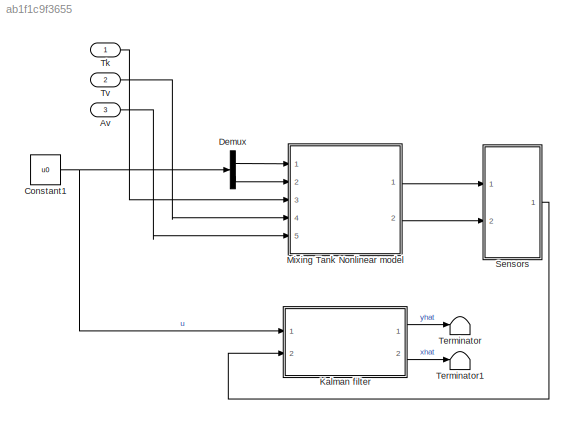
MODEL slx_ab1f1c9f3655
KIND model
CONFIG AbsTol = auto
CONFIG EnableMultiTasking = off
CONFIG FixedStep = STEP_SIZE
CONFIG MaxStep = auto
CONFIG MinStep = auto
CONFIG RelTol = 1e-3
CONFIG SampleTimeConstraint = Unconstrained
CONFIG Solver = ode4
CONFIG SolverName = ode4
CONFIG StartTime = 0.0
CONFIG StopTime = SIM_TIME
BLOCK [Inport] Av
  IconDisplay = Port number
  Port = 3
BLOCK [Constant] Constant1
  Value = u0
BLOCK [Demux] Demux
  DisplayOption = bar
  Outputs = 2
  Ports = [1, 2]
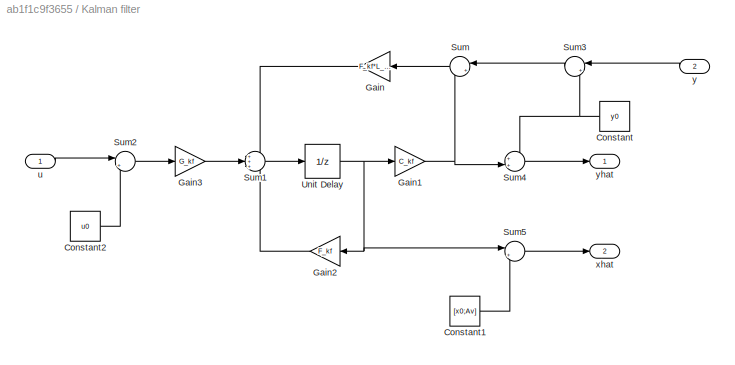
BLOCK [SubSystem] Kalman filter
  Ports = [2, 2]
  RequestExecContextInheritance = off
BLOCK [Constant] Kalman filter/Constant
  Value = y0
BLOCK [Constant] Kalman filter/Constant1
  Value = [x0;Av]
BLOCK [Constant] Kalman filter/Constant2
  Value = u0
BLOCK [Gain] Kalman filter/Gain
  Gain = F_kf*L_kf
  Multiplication = Matrix(K*u) (u vector)
  OutDataTypeStr = Inherit: Inherit via internal rule
  ParamDataTypeStr = Inherit: Inherit via internal rule
  SaturateOnIntegerOverflow = off
BLOCK [Gain] Kalman filter/Gain1
  Gain = C_kf
  Multiplication = Matrix(K*u) (u vector)
  OutDataTypeStr = Inherit: Inherit via internal rule
  ParamDataTypeStr = Inherit: Inherit via internal rule
  SaturateOnIntegerOverflow = off
BLOCK [Gain] Kalman filter/Gain2
  Gain = F_kf
  Multiplication = Matrix(K*u) (u vector)
  OutDataTypeStr = Inherit: Inherit via internal rule
  ParamDataTypeStr = Inherit: Inherit via internal rule
  SaturateOnIntegerOverflow = off
BLOCK [Gain] Kalman filter/Gain3
  Gain = G_kf
  Multiplication = Matrix(K*u) (u vector)
  OutDataTypeStr = Inherit: Inherit via internal rule
  ParamDataTypeStr = Inherit: Inherit via internal rule
  SaturateOnIntegerOverflow = off
BLOCK [Sum] Kalman filter/Sum
  IconShape = round
  InputSameDT = off
  Inputs = |+-
  OutDataTypeStr = Inherit: Inherit via internal rule
  Ports = [2, 1]
  SaturateOnIntegerOverflow = off
BLOCK [Sum] Kalman filter/Sum1
  IconShape = round
  InputSameDT = off
  Inputs = +++
  OutDataTypeStr = Inherit: Inherit via internal rule
  Ports = [3, 1]
  SaturateOnIntegerOverflow = off
BLOCK [Sum] Kalman filter/Sum2
  IconShape = round
  InputSameDT = off
  Inputs = |+-
  OutDataTypeStr = Inherit: Inherit via internal rule
  Ports = [2, 1]
  SaturateOnIntegerOverflow = off
BLOCK [Sum] Kalman filter/Sum3
  IconShape = round
  InputSameDT = off
  Inputs = |+-
  OutDataTypeStr = Inherit: Inherit via internal rule
  Ports = [2, 1]
  SaturateOnIntegerOverflow = off
BLOCK [Sum] Kalman filter/Sum4
  IconShape = round
  InputSameDT = off
  Inputs = ++|
  OutDataTypeStr = Inherit: Inherit via internal rule
  Ports = [2, 1]
  SaturateOnIntegerOverflow = off
BLOCK [Sum] Kalman filter/Sum5
  IconShape = round
  InputSameDT = off
  Inputs = |++
  OutDataTypeStr = Inherit: Inherit via internal rule
  Ports = [2, 1]
  SaturateOnIntegerOverflow = off
BLOCK [UnitDelay] Kalman filter/Unit Delay
  InitialCondition = x0hat
  InputProcessing = Elements as channels (sample based)
  SampleTime = -1
BLOCK [Inport] Kalman filter/u
  IconDisplay = Port number
BLOCK [Outport] Kalman filter/xhat
  IconDisplay = Port number
  Port = 2
BLOCK [Inport] Kalman filter/y
  IconDisplay = Port number
  Port = 2
BLOCK [Outport] Kalman filter/yhat
  IconDisplay = Port number
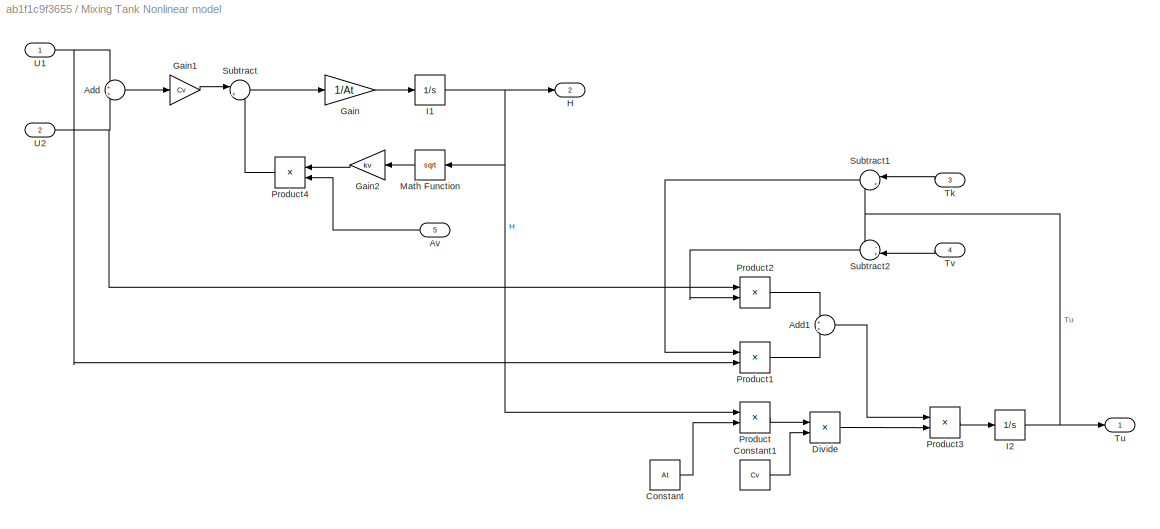
BLOCK [SubSystem] Mixing Tank Nonlinear model
  Ports = [5, 2]
  RequestExecContextInheritance = off
BLOCK [Sum] Mixing Tank Nonlinear model/Add
  IconShape = round
  InputSameDT = off
  OutDataTypeStr = Inherit: Inherit via internal rule
  Ports = [2, 1]
  SaturateOnIntegerOverflow = off
BLOCK [Sum] Mixing Tank Nonlinear model/Add1
  IconShape = round
  InputSameDT = off
  OutDataTypeStr = Inherit: Inherit via internal rule
  Ports = [2, 1]
  SaturateOnIntegerOverflow = off
BLOCK [Inport] Mixing Tank Nonlinear model/Av
  IconDisplay = Port number
  Port = 5
BLOCK [Constant] Mixing Tank Nonlinear model/Constant
  Value = At
BLOCK [Constant] Mixing Tank Nonlinear model/Constant1
  Value = Cv
BLOCK [Product] Mixing Tank Nonlinear model/Divide
  InputSameDT = off
  Inputs = /*
  OutDataTypeStr = Inherit: Inherit via internal rule
  Ports = [2, 1]
  RndMeth = Floor
  SaturateOnIntegerOverflow = off
BLOCK [Gain] Mixing Tank Nonlinear model/Gain
  Gain = 1/At
  OutDataTypeStr = Inherit: Inherit via internal rule
  ParamDataTypeStr = Inherit: Inherit via internal rule
  SaturateOnIntegerOverflow = off
BLOCK [Gain] Mixing Tank Nonlinear model/Gain1
  Gain = Cv
  OutDataTypeStr = Inherit: Inherit via internal rule
  ParamDataTypeStr = Inherit: Inherit via internal rule
  SaturateOnIntegerOverflow = off
BLOCK [Gain] Mixing Tank Nonlinear model/Gain2
  Gain = kv
  OutDataTypeStr = Inherit: Inherit via internal rule
  ParamDataTypeStr = Inherit: Inherit via internal rule
  SaturateOnIntegerOverflow = off
BLOCK [Outport] Mixing Tank Nonlinear model/H
  IconDisplay = Port number
  Port = 2
BLOCK [Integrator] Mixing Tank Nonlinear model/I1
  InitialCondition = x0(1)
  LimitOutput = on
  LowerSaturationLimit = 0
  Ports = [1, 1]
  Priority = 1
BLOCK [Integrator] Mixing Tank Nonlinear model/I2
  InitialCondition = x0(2)
  Ports = [1, 1]
  Priority = 2
BLOCK [Math] Mixing Tank Nonlinear model/Math Function
  Operator = sqrt
  Ports = [1, 1]
BLOCK [Product] Mixing Tank Nonlinear model/Product
  InputSameDT = off
  OutDataTypeStr = Inherit: Inherit via internal rule
  Ports = [2, 1]
  SaturateOnIntegerOverflow = off
BLOCK [Product] Mixing Tank Nonlinear model/Product1
  InputSameDT = off
  OutDataTypeStr = Inherit: Inherit via internal rule
  Ports = [2, 1]
  SaturateOnIntegerOverflow = off
BLOCK [Product] Mixing Tank Nonlinear model/Product2
  InputSameDT = off
  OutDataTypeStr = Inherit: Inherit via internal rule
  Ports = [2, 1]
  SaturateOnIntegerOverflow = off
BLOCK [Product] Mixing Tank Nonlinear model/Product3
  InputSameDT = off
  OutDataTypeStr = Inherit: Inherit via internal rule
  Ports = [2, 1]
  SaturateOnIntegerOverflow = off
BLOCK [Product] Mixing Tank Nonlinear model/Product4
  InputSameDT = off
  OutDataTypeStr = Inherit: Inherit via internal rule
  Ports = [2, 1]
  SaturateOnIntegerOverflow = off
BLOCK [Sum] Mixing Tank Nonlinear model/Subtract
  IconShape = round
  InputSameDT = off
  Inputs = |+-
  OutDataTypeStr = Inherit: Inherit via internal rule
  Ports = [2, 1]
  SaturateOnIntegerOverflow = off
BLOCK [Sum] Mixing Tank Nonlinear model/Subtract1
  IconShape = round
  InputSameDT = off
  Inputs = |+-
  OutDataTypeStr = Inherit: Inherit via internal rule
  Ports = [2, 1]
  SaturateOnIntegerOverflow = off
BLOCK [Sum] Mixing Tank Nonlinear model/Subtract2
  IconShape = round
  InputSameDT = off
  Inputs = -+|
  OutDataTypeStr = Inherit: Inherit via internal rule
  Ports = [2, 1]
  SaturateOnIntegerOverflow = off
BLOCK [Inport] Mixing Tank Nonlinear model/Tk
  IconDisplay = Port number
  Port = 3
BLOCK [Outport] Mixing Tank Nonlinear model/Tu
  IconDisplay = Port number
BLOCK [Inport] Mixing Tank Nonlinear model/Tv
  IconDisplay = Port number
  Port = 4
BLOCK [Inport] Mixing Tank Nonlinear model/U1
  IconDisplay = Port number
BLOCK [Inport] Mixing Tank Nonlinear model/U2
  IconDisplay = Port number
  Port = 2
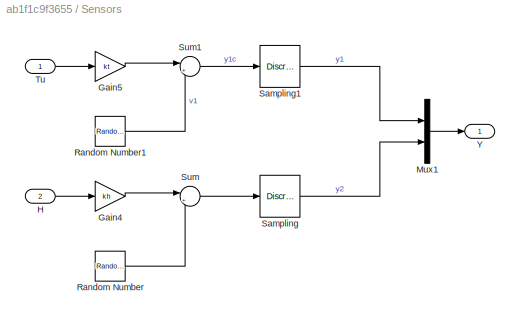
BLOCK [SubSystem] Sensors
  Ports = [2, 1]
  RequestExecContextInheritance = off
BLOCK [Gain] Sensors/Gain4
  Gain = kh
  OutDataTypeStr = Inherit: Inherit via internal rule
  ParamDataTypeStr = Inherit: Inherit via internal rule
  SaturateOnIntegerOverflow = off
BLOCK [Gain] Sensors/Gain5
  Gain = kt
  OutDataTypeStr = Inherit: Inherit via internal rule
  ParamDataTypeStr = Inherit: Inherit via internal rule
  SaturateOnIntegerOverflow = off
BLOCK [Inport] Sensors/H
  IconDisplay = Port number
  Port = 2
BLOCK [Mux] Sensors/Mux1
  DisplayOption = bar
  Inputs = 2
  Ports = [2, 1]
BLOCK [RandomNumber] Sensors/Random Number
  SampleTime = Ts
  Seed = [951706]
  Variance = V2d(2,2)
BLOCK [RandomNumber] Sensors/Random Number1
  SampleTime = Ts
  Seed = [35498]
  Variance = V2d(1,1)
BLOCK [DiscreteTransferFcn] Sensors/Sampling
  Denominator = [1]
  InputPortMap = u0
  Ports = [1, 1]
  SampleTime = Ts
BLOCK [DiscreteTransferFcn] Sensors/Sampling1
  Denominator = [1]
  InputPortMap = u0
  Ports = [1, 1]
  SampleTime = Ts
BLOCK [Sum] Sensors/Sum
  IconShape = round
  InputSameDT = off
  Inputs = |++
  OutDataTypeStr = Inherit: Inherit via internal rule
  Ports = [2, 1]
  SaturateOnIntegerOverflow = off
BLOCK [Sum] Sensors/Sum1
  IconShape = round
  InputSameDT = off
  Inputs = |++
  OutDataTypeStr = Inherit: Inherit via internal rule
  Ports = [2, 1]
  SaturateOnIntegerOverflow = off
BLOCK [Inport] Sensors/Tu
  IconDisplay = Port number
BLOCK [Outport] Sensors/Y
  IconDisplay = Port number
BLOCK [Terminator] Terminator
BLOCK [Terminator] Terminator1
BLOCK [Inport] Tk
  IconDisplay = Port number
BLOCK [Inport] Tv
  IconDisplay = Port number
  Port = 2
LINE Av:1 -> Mixing Tank Nonlinear model:5
NET Constant1:1 -> Demux:1, Kalman filter:1
LINE Demux:1 -> Mixing Tank Nonlinear model:1
LINE Demux:2 -> Mixing Tank Nonlinear model:2
LINE Kalman filter/Constant1:1 -> Kalman filter/Sum5:2
LINE Kalman filter/Constant2:1 -> Kalman filter/Sum2:2
NET Kalman filter/Constant:1 -> Kalman filter/Sum3:2, Kalman filter/Sum4:1
NET Kalman filter/Gain1:1 -> Kalman filter/Sum4:2, Kalman filter/Sum:2
LINE Kalman filter/Gain2:1 -> Kalman filter/Sum1:3
LINE Kalman filter/Gain3:1 -> Kalman filter/Sum1:2
LINE Kalman filter/Gain:1 -> Kalman filter/Sum1:1
LINE Kalman filter/Sum1:1 -> Kalman filter/Unit Delay:1
LINE Kalman filter/Sum2:1 -> Kalman filter/Gain3:1
LINE Kalman filter/Sum3:1 -> Kalman filter/Sum:1
LINE Kalman filter/Sum4:1 -> Kalman filter/yhat:1
LINE Kalman filter/Sum5:1 -> Kalman filter/xhat:1
LINE Kalman filter/Sum:1 -> Kalman filter/Gain:1
NET Kalman filter/Unit Delay:1 -> Kalman filter/Gain1:1, Kalman filter/Gain2:1, Kalman filter/Sum5:1
LINE Kalman filter/u:1 -> Kalman filter/Sum2:1
LINE Kalman filter/y:1 -> Kalman filter/Sum3:1
LINE Kalman filter:1 -> Terminator:1
LINE Kalman filter:2 -> Terminator1:1
LINE Mixing Tank Nonlinear model/Add1:1 -> Mixing Tank Nonlinear model/Product3:1
LINE Mixing Tank Nonlinear model/Add:1 -> Mixing Tank Nonlinear model/Gain1:1
LINE Mixing Tank Nonlinear model/Av:1 -> Mixing Tank Nonlinear model/Product4:2
LINE Mixing Tank Nonlinear model/Constant1:1 -> Mixing Tank Nonlinear model/Divide:2
LINE Mixing Tank Nonlinear model/Constant:1 -> Mixing Tank Nonlinear model/Product:2
LINE Mixing Tank Nonlinear model/Divide:1 -> Mixing Tank Nonlinear model/Product3:2
LINE Mixing Tank Nonlinear model/Gain1:1 -> Mixing Tank Nonlinear model/Subtract:1
LINE Mixing Tank Nonlinear model/Gain2:1 -> Mixing Tank Nonlinear model/Product4:1
LINE Mixing Tank Nonlinear model/Gain:1 -> Mixing Tank Nonlinear model/I1:1
NET Mixing Tank Nonlinear model/I1:1 -> Mixing Tank Nonlinear model/H:1, Mixing Tank Nonlinear model/Math Function:1, Mixing Tank Nonlinear model/Product:1
NET Mixing Tank Nonlinear model/I2:1 -> Mixing Tank Nonlinear model/Subtract1:2, Mixing Tank Nonlinear model/Subtract2:1, Mixing Tank Nonlinear model/Tu:1
LINE Mixing Tank Nonlinear model/Math Function:1 -> Mixing Tank Nonlinear model/Gain2:1
LINE Mixing Tank Nonlinear model/Product1:1 -> Mixing Tank Nonlinear model/Add1:2
LINE Mixing Tank Nonlinear model/Product2:1 -> Mixing Tank Nonlinear model/Add1:1
LINE Mixing Tank Nonlinear model/Product3:1 -> Mixing Tank Nonlinear model/I2:1
LINE Mixing Tank Nonlinear model/Product4:1 -> Mixing Tank Nonlinear model/Subtract:2
LINE Mixing Tank Nonlinear model/Product:1 -> Mixing Tank Nonlinear model/Divide:1
LINE Mixing Tank Nonlinear model/Subtract1:1 -> Mixing Tank Nonlinear model/Product1:1
LINE Mixing Tank Nonlinear model/Subtract2:1 -> Mixing Tank Nonlinear model/Product2:2
LINE Mixing Tank Nonlinear model/Subtract:1 -> Mixing Tank Nonlinear model/Gain:1
LINE Mixing Tank Nonlinear model/Tk:1 -> Mixing Tank Nonlinear model/Subtract1:1
LINE Mixing Tank Nonlinear model/Tv:1 -> Mixing Tank Nonlinear model/Subtract2:2
NET Mixing Tank Nonlinear model/U1:1 -> Mixing Tank Nonlinear model/Add:1, Mixing Tank Nonlinear model/Product1:2
NET Mixing Tank Nonlinear model/U2:1 -> Mixing Tank Nonlinear model/Add:2, Mixing Tank Nonlinear model/Product2:1
LINE Mixing Tank Nonlinear model:1 -> Sensors:1
LINE Mixing Tank Nonlinear model:2 -> Sensors:2
LINE Sensors/Gain4:1 -> Sensors/Sum:1
LINE Sensors/Gain5:1 -> Sensors/Sum1:1
LINE Sensors/H:1 -> Sensors/Gain4:1
LINE Sensors/Mux1:1 -> Sensors/Y:1
LINE Sensors/Random Number1:1 -> Sensors/Sum1:2
LINE Sensors/Random Number:1 -> Sensors/Sum:2
LINE Sensors/Sampling1:1 -> Sensors/Mux1:1
LINE Sensors/Sampling:1 -> Sensors/Mux1:2
LINE Sensors/Sum1:1 -> Sensors/Sampling1:1
LINE Sensors/Sum:1 -> Sensors/Sampling:1
LINE Sensors/Tu:1 -> Sensors/Gain5:1
LINE Sensors:1 -> Kalman filter:2
LINE Tk:1 -> Mixing Tank Nonlinear model:3
LINE Tv:1 -> Mixing Tank Nonlinear model:4
note: NET lines group one-source signal fan-out (src -> all destinations, sorted); 1:1 wires keep LINE
